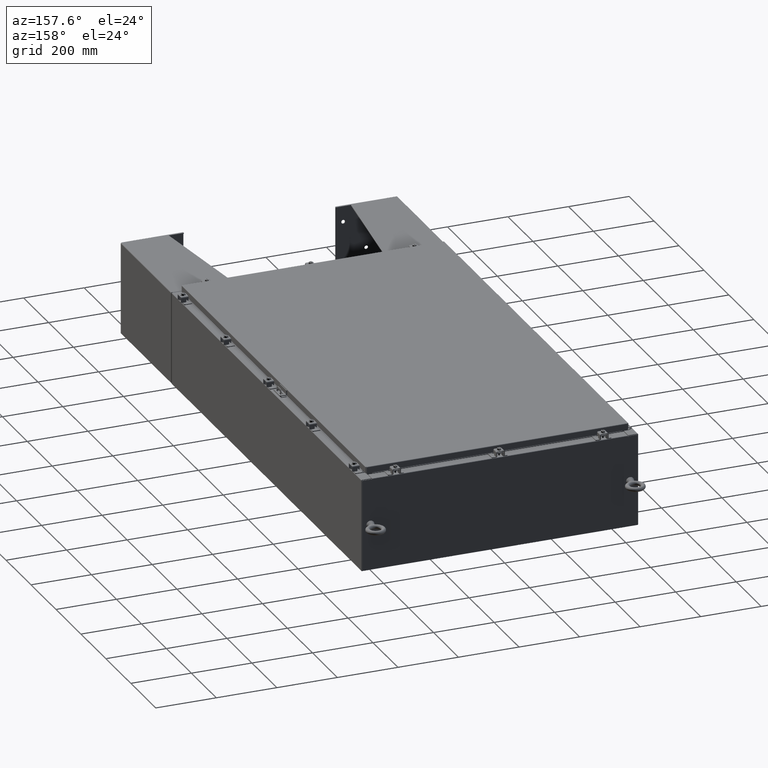
[diagram: clean part render]
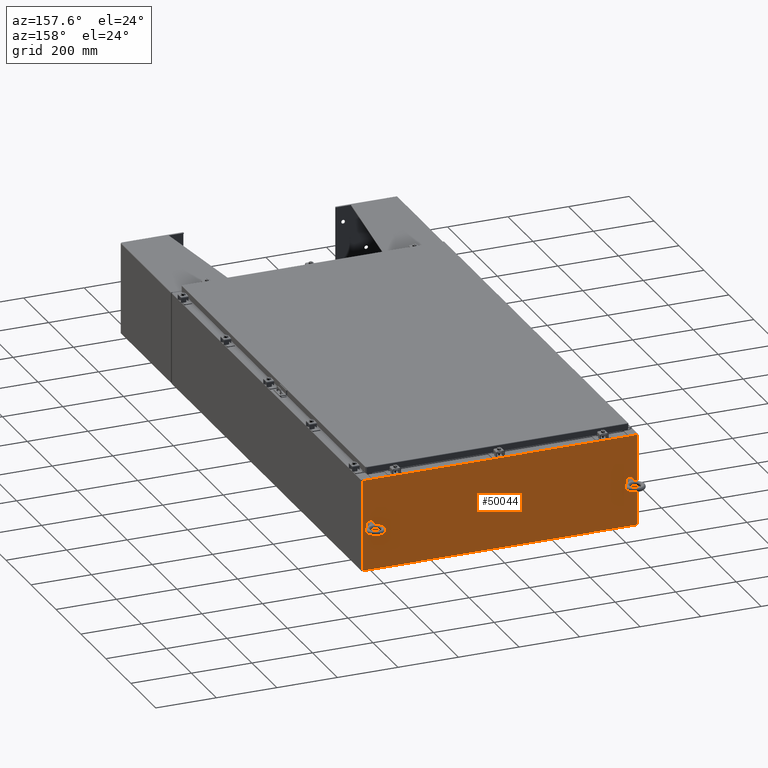
[diagram: same view with one face highlighted and labeled with its STEP entity id]
A machine part, auxiliary view. The second image highlights one B-rep face of the part: STEP entity #50044.
In plain terms, the highlighted planar face has unit normal (0, -1, 0).
Its self-contained STEP definition (entity closure, byte-faithful):
#413 = ORIENTED_EDGE ( 'NONE', *, *, #3805, .T. ) ;
#615 = ORIENTED_EDGE ( 'NONE', *, *, #26561, .F. ) ;
#750 = VECTOR ( 'NONE', #36712, 39.37007874015748100 ) ;
#786 = FACE_BOUND ( 'NONE', #55069, .T. ) ;
#1227 = EDGE_LOOP ( 'NONE', ( #4074, #34744, #63494, #15954, #4257, #29921, #45653, #413, #40508, #42529, #45715, #16877 ) ) ;
#1691 = VERTEX_POINT ( 'NONE', #35898 ) ;
#1773 = LINE ( 'NONE', #16915, #15670 ) ;
#2130 = CARTESIAN_POINT ( 'NONE',  ( 16.63720000000000400, 0.0000000000000000000, 5.874949999999999200 ) ) ;
#3085 = VECTOR ( 'NONE', #16566, 39.37007874015748100 ) ;
#3438 = VECTOR ( 'NONE', #61485, 39.37007874015748100 ) ;
#3455 = EDGE_CURVE ( 'NONE', #64609, #19385, #43638, .T. ) ;
#3805 = EDGE_CURVE ( 'NONE', #16370, #38900, #39570, .T. ) ;
#4074 = ORIENTED_EDGE ( 'NONE', *, *, #44439, .F. ) ;
#4257 = ORIENTED_EDGE ( 'NONE', *, *, #8499, .F. ) ;
#5181 = CARTESIAN_POINT ( 'NONE',  ( -17.92529999999999600, 0.0000000000000000000, 5.925299999999999100 ) ) ;
#6139 = DIRECTION ( 'NONE',  ( 1.000000000000000000, 0.0000000000000000000, 0.0000000000000000000 ) ) ;
#8289 = DIRECTION ( 'NONE',  ( -0.0000000000000000000, 1.000000000000000000, -0.0000000000000000000 ) ) ;
#8499 = EDGE_CURVE ( 'NONE', #19385, #66528, #32255, .T. ) ;
#9365 = EDGE_CURVE ( 'NONE', #47343, #1691, #1773, .T. ) ;
#9453 = VERTEX_POINT ( 'NONE', #24949 ) ;
#11327 = VERTEX_POINT ( 'NONE', #42800 ) ;
#11988 = AXIS2_PLACEMENT_3D ( 'NONE', #14758, #51493, #20071 ) ;
#12503 = CARTESIAN_POINT ( 'NONE',  ( 17.92530000000000400, 0.0000000000000000000, 5.925300000000000000 ) ) ;
#13015 = CARTESIAN_POINT ( 'NONE',  ( 17.92530000000000400, 0.0000000000000000000, -5.925300000000000000 ) ) ;
#13532 = DIRECTION ( 'NONE',  ( 0.0000000000000000000, -0.0000000000000000000, -1.000000000000000000 ) ) ;
#13601 = CARTESIAN_POINT ( 'NONE',  ( -16.63720000000000000, 3.756290991288361700E-016, 5.912299999999999200 ) ) ;
#14680 = FACE_BOUND ( 'NONE', #33833, .T. ) ;
#14711 = CIRCLE ( 'NONE', #29271, 0.3750000000000008300 ) ;
#14758 = CARTESIAN_POINT ( 'NONE',  ( -16.88529999999999700, 0.0000000000000000000, -5.533055694631047000E-017 ) ) ;
#14841 = LINE ( 'NONE', #28781, #27235 ) ;
#15670 = VECTOR ( 'NONE', #66665, 39.37007874015748100 ) ;
#15731 = LINE ( 'NONE', #19882, #3438 ) ;
#15954 = ORIENTED_EDGE ( 'NONE', *, *, #61968, .T. ) ;
#16370 = VERTEX_POINT ( 'NONE', #66176 ) ;
#16566 = DIRECTION ( 'NONE',  ( 0.0000000000000000000, 0.0000000000000000000, 1.000000000000000000 ) ) ;
#16877 = ORIENTED_EDGE ( 'NONE', *, *, #56709, .T. ) ;
#16915 = CARTESIAN_POINT ( 'NONE',  ( -16.63720000000000000, -0.0000000000000000000, 0.0000000000000000000 ) ) ;
#17255 = DIRECTION ( 'NONE',  ( -8.681145560799821800E-014, 0.0000000000000000000, -1.000000000000000000 ) ) ;
#17349 = VECTOR ( 'NONE', #6139, 39.37007874015748100 ) ;
#19385 = VERTEX_POINT ( 'NONE', #2130 ) ;
#19882 = CARTESIAN_POINT ( 'NONE',  ( -17.92529999999999600, 0.0000000000000000000, 5.925299999999999100 ) ) ;
#19965 = DIRECTION ( 'NONE',  ( 0.0000000000000000000, 1.000000000000000000, 0.0000000000000000000 ) ) ;
#20071 = DIRECTION ( 'NONE',  ( 0.0000000000000000000, 0.0000000000000000000, 1.000000000000000000 ) ) ;
#20282 = ORIENTED_EDGE ( 'NONE', *, *, #64613, .F. ) ;
#23026 = VERTEX_POINT ( 'NONE', #13015 ) ;
#23151 = EDGE_CURVE ( 'NONE', #38900, #23026, #62409, .T. ) ;
#24949 = CARTESIAN_POINT ( 'NONE',  ( -17.92529999999999600, 0.0000000000000000000, -5.925300000000000000 ) ) ;
#25512 = VECTOR ( 'NONE', #17255, 39.37007874015748100 ) ;
#25605 = VECTOR ( 'NONE', #58108, 39.37007874015748100 ) ;
#25747 = VERTEX_POINT ( 'NONE', #28669 ) ;
#26561 = EDGE_CURVE ( 'NONE', #11327, #65621, #33962, .T. ) ;
#27235 = VECTOR ( 'NONE', #44316, 39.37007874015748100 ) ;
#27490 = DIRECTION ( 'NONE',  ( 0.0000000000000000000, 1.000000000000000000, 0.0000000000000000000 ) ) ;
#28233 = EDGE_CURVE ( 'NONE', #16370, #64609, #53369, .T. ) ;
#28473 = DIRECTION ( 'NONE',  ( -0.0000000000000000000, 1.000000000000000000, -0.0000000000000000000 ) ) ;
#28669 = CARTESIAN_POINT ( 'NONE',  ( -17.92529999999999600, 0.0000000000000000000, 5.925299999999999100 ) ) ;
#28781 = CARTESIAN_POINT ( 'NONE',  ( -17.92529999999999600, 0.0000000000000000000, -5.925300000000000000 ) ) ;
#28969 = VECTOR ( 'NONE', #30791, 39.37007874015748100 ) ;
#29271 = AXIS2_PLACEMENT_3D ( 'NONE', #31060, #67605, #36408 ) ;
#29289 = EDGE_CURVE ( 'NONE', #9453, #25747, #54821, .T. ) ;
#29921 = ORIENTED_EDGE ( 'NONE', *, *, #3455, .F. ) ;
#30167 = CIRCLE ( 'NONE', #32459, 0.3750000000000008300 ) ;
#30791 = DIRECTION ( 'NONE',  ( 0.0000000000000000000, 0.0000000000000000000, 1.000000000000000000 ) ) ;
#31023 = LINE ( 'NONE', #32448, #3085 ) ;
#31060 = CARTESIAN_POINT ( 'NONE',  ( 16.88530000000000100, 0.0000000000000000000, 0.0000000000000000000 ) ) ;
#31317 = LINE ( 'NONE', #37663, #17349 ) ;
#32255 = LINE ( 'NONE', #49060, #28969 ) ;
#32448 = CARTESIAN_POINT ( 'NONE',  ( -16.67455000000000000, -0.0000000000000000000, 0.0000000000000000000 ) ) ;
#32459 = AXIS2_PLACEMENT_3D ( 'NONE', #51381, #19965, #56562 ) ;
#33833 = EDGE_LOOP ( 'NONE', ( #615, #20282 ) ) ;
#33962 = CIRCLE ( 'NONE', #11988, 0.3750000000000008300 ) ;
#34517 = PLANE ( 'NONE',  #47286 ) ;
#34744 = ORIENTED_EDGE ( 'NONE', *, *, #60282, .F. ) ;
#35160 = CARTESIAN_POINT ( 'NONE',  ( 16.88530000000000100, 0.0000000000000000000, -0.3750000000000008300 ) ) ;
#35361 = VERTEX_POINT ( 'NONE', #35982 ) ;
#35633 = AXIS2_PLACEMENT_3D ( 'NONE', #58729, #27490, #64007 ) ;
#35710 = AXIS2_PLACEMENT_3D ( 'NONE', #65928, #8289, #61807 ) ;
#35898 = CARTESIAN_POINT ( 'NONE',  ( -16.63720000000000000, -0.0000000000000000000, 5.874949999999999200 ) ) ;
#35982 = CARTESIAN_POINT ( 'NONE',  ( -16.67455000000000000, 0.0000000000000000000, 5.874949999999999200 ) ) ;
#36119 = CARTESIAN_POINT ( 'NONE',  ( -16.88529999999999700, 0.0000000000000000000, -0.3750000000000009400 ) ) ;
#36313 = CARTESIAN_POINT ( 'NONE',  ( 16.63720000000000400, 0.0000000000000000000, 5.912299999999999200 ) ) ;
#36408 = DIRECTION ( 'NONE',  ( 0.0000000000000000000, 0.0000000000000000000, 1.000000000000000000 ) ) ;
#36712 = DIRECTION ( 'NONE',  ( -0.0000000000000000000, -0.0000000000000000000, 1.000000000000000000 ) ) ;
#37663 = CARTESIAN_POINT ( 'NONE',  ( -16.63720000000000000, 3.756290991288361700E-016, 5.912299999999999200 ) ) ;
#37845 = CARTESIAN_POINT ( 'NONE',  ( 16.67455000000000400, 0.0000000000000000000, 5.874949999999999200 ) ) ;
#38578 = AXIS2_PLACEMENT_3D ( 'NONE', #59736, #28473, #64999 ) ;
#38900 = VERTEX_POINT ( 'NONE', #12503 ) ;
#39570 = LINE ( 'NONE', #45873, #25605 ) ;
#39767 = CARTESIAN_POINT ( 'NONE',  ( 0.0000000000000000000, 0.0000000000000000000, 0.0000000000000000000 ) ) ;
#40508 = ORIENTED_EDGE ( 'NONE', *, *, #23151, .T. ) ;
#41545 = EDGE_CURVE ( 'NONE', #23026, #9453, #14841, .T. ) ;
#42509 = EDGE_CURVE ( 'NONE', #46334, #66355, #14711, .T. ) ;
#42529 = ORIENTED_EDGE ( 'NONE', *, *, #41545, .T. ) ;
#42562 = CARTESIAN_POINT ( 'NONE',  ( -16.67455000000000000, 0.0000000000000000000, 5.925299999999999100 ) ) ;
#42800 = CARTESIAN_POINT ( 'NONE',  ( -16.88529999999999700, 0.0000000000000000000, 0.3750000000000007800 ) ) ;
#43638 = CIRCLE ( 'NONE', #35710, 0.01867499999999949400 ) ;
#44316 = DIRECTION ( 'NONE',  ( -1.000000000000000000, -0.0000000000000000000, -0.0000000000000000000 ) ) ;
#44439 = EDGE_CURVE ( 'NONE', #35361, #53430, #31023, .T. ) ;
#44832 = CIRCLE ( 'NONE', #35633, 0.3750000000000008300 ) ;
#45653 = ORIENTED_EDGE ( 'NONE', *, *, #28233, .F. ) ;
#45715 = ORIENTED_EDGE ( 'NONE', *, *, #29289, .T. ) ;
#45873 = CARTESIAN_POINT ( 'NONE',  ( -17.92529999999999600, 0.0000000000000000000, 5.925299999999999100 ) ) ;
#46334 = VERTEX_POINT ( 'NONE', #59382 ) ;
#47286 = AXIS2_PLACEMENT_3D ( 'NONE', #39767, #65727, #13532 ) ;
#47343 = VERTEX_POINT ( 'NONE', #13601 ) ;
#48263 = CARTESIAN_POINT ( 'NONE',  ( 17.92530000000000400, 0.0000000000000000000, 5.925300000000000000 ) ) ;
#48623 = VECTOR ( 'NONE', #57887, 39.37007874015748100 ) ;
#48705 = CARTESIAN_POINT ( 'NONE',  ( 16.67454999999949500, -0.0000000000000000000, -1.447541957108302900E-012 ) ) ;
#49060 = CARTESIAN_POINT ( 'NONE',  ( 16.63720000000000400, 0.0000000000000000000, 0.0000000000000000000 ) ) ;
#49383 = ORIENTED_EDGE ( 'NONE', *, *, #63945, .F. ) ;
#50044 = ADVANCED_FACE ( 'NONE', ( #786, #14680, #54857 ), #34517, .F. ) ;
#50615 = CIRCLE ( 'NONE', #38578, 0.01867499999999949400 ) ;
#51381 = CARTESIAN_POINT ( 'NONE',  ( 16.88530000000000100, 0.0000000000000000000, 0.0000000000000000000 ) ) ;
#51493 = DIRECTION ( 'NONE',  ( 0.0000000000000000000, 1.000000000000000000, 0.0000000000000000000 ) ) ;
#53369 = LINE ( 'NONE', #48705, #25512 ) ;
#53430 = VERTEX_POINT ( 'NONE', #42562 ) ;
#54821 = LINE ( 'NONE', #5181, #750 ) ;
#54857 = FACE_OUTER_BOUND ( 'NONE', #1227, .T. ) ;
#55069 = EDGE_LOOP ( 'NONE', ( #59323, #49383 ) ) ;
#56562 = DIRECTION ( 'NONE',  ( 0.0000000000000000000, 0.0000000000000000000, 1.000000000000000000 ) ) ;
#56709 = EDGE_CURVE ( 'NONE', #25747, #53430, #15731, .T. ) ;
#57887 = DIRECTION ( 'NONE',  ( 0.0000000000000000000, 0.0000000000000000000, -1.000000000000000000 ) ) ;
#58108 = DIRECTION ( 'NONE',  ( 1.000000000000000000, 0.0000000000000000000, 3.048036009064577000E-017 ) ) ;
#58729 = CARTESIAN_POINT ( 'NONE',  ( -16.88529999999999700, 0.0000000000000000000, -5.533055694631047000E-017 ) ) ;
#59323 = ORIENTED_EDGE ( 'NONE', *, *, #42509, .F. ) ;
#59382 = CARTESIAN_POINT ( 'NONE',  ( 16.88530000000000100, 0.0000000000000000000, 0.3750000000000008300 ) ) ;
#59736 = CARTESIAN_POINT ( 'NONE',  ( -16.65587499999999800, 0.0000000000000000000, 5.874949999999999200 ) ) ;
#60282 = EDGE_CURVE ( 'NONE', #1691, #35361, #50615, .T. ) ;
#61485 = DIRECTION ( 'NONE',  ( 1.000000000000000000, 0.0000000000000000000, 3.048036009064577000E-017 ) ) ;
#61807 = DIRECTION ( 'NONE',  ( 0.0000000000000000000, 0.0000000000000000000, -1.000000000000000000 ) ) ;
#61968 = EDGE_CURVE ( 'NONE', #47343, #66528, #31317, .T. ) ;
#62409 = LINE ( 'NONE', #48263, #48623 ) ;
#63494 = ORIENTED_EDGE ( 'NONE', *, *, #9365, .F. ) ;
#63945 = EDGE_CURVE ( 'NONE', #66355, #46334, #30167, .T. ) ;
#64007 = DIRECTION ( 'NONE',  ( 0.0000000000000000000, 0.0000000000000000000, 1.000000000000000000 ) ) ;
#64609 = VERTEX_POINT ( 'NONE', #37845 ) ;
#64613 = EDGE_CURVE ( 'NONE', #65621, #11327, #44832, .T. ) ;
#64999 = DIRECTION ( 'NONE',  ( 0.0000000000000000000, 0.0000000000000000000, -1.000000000000000000 ) ) ;
#65621 = VERTEX_POINT ( 'NONE', #36119 ) ;
#65727 = DIRECTION ( 'NONE',  ( 0.0000000000000000000, -1.000000000000000000, 0.0000000000000000000 ) ) ;
#65928 = CARTESIAN_POINT ( 'NONE',  ( 16.65587500000000500, 0.0000000000000000000, 5.874949999999999200 ) ) ;
#66176 = CARTESIAN_POINT ( 'NONE',  ( 16.67455000000000700, 0.0000000000000000000, 5.925300000000000000 ) ) ;
#66355 = VERTEX_POINT ( 'NONE', #35160 ) ;
#66528 = VERTEX_POINT ( 'NONE', #36313 ) ;
#66665 = DIRECTION ( 'NONE',  ( 0.0000000000000000000, 0.0000000000000000000, -1.000000000000000000 ) ) ;
#67605 = DIRECTION ( 'NONE',  ( 0.0000000000000000000, 1.000000000000000000, 0.0000000000000000000 ) ) ;